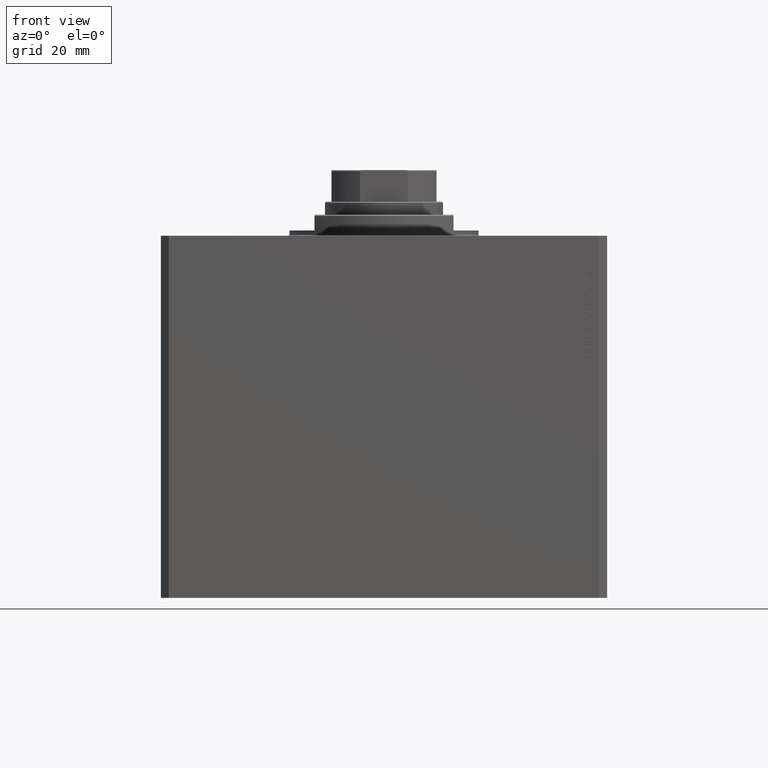
[diagram: clean part render]
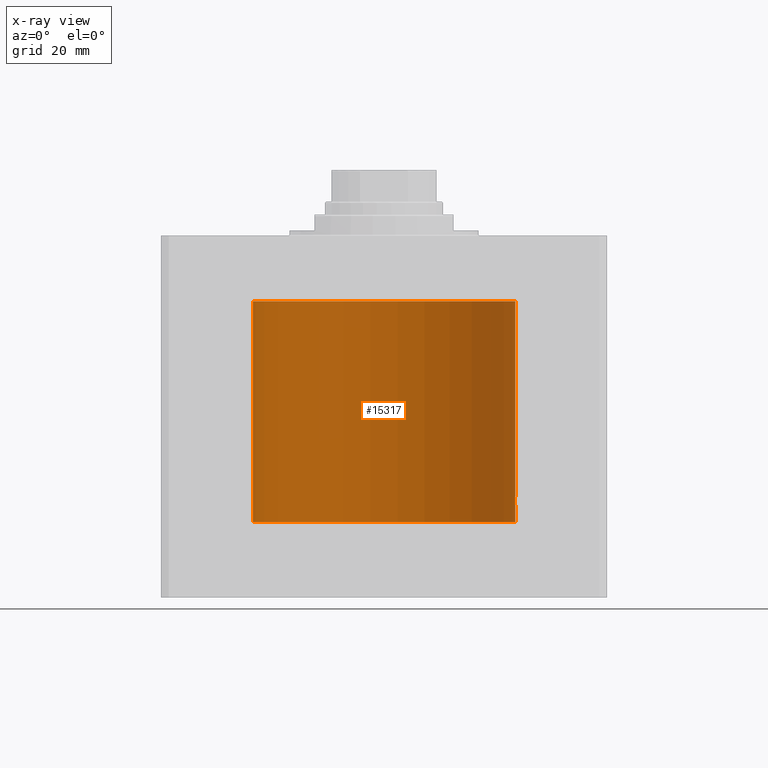
[diagram: x-ray — body ghosted, one internal face saturated and labeled with its STEP entity id]
A machine part, front view, then the same camera in x-ray: the body is ghosted and one INTERNAL B-rep face — a face not visible from any outside direction — is saturated and labeled: STEP entity #15317.
In plain terms, the highlighted cylindrical surface (partial cylindrical patch) has radius 50 mm, axis along (0, 0, 1).
Its self-contained STEP definition (entity closure, byte-faithful):
#154 = VECTOR ( 'NONE', #44885, 1000.000000000000000 ) ;
#468 = CARTESIAN_POINT ( 'NONE',  ( -49.95998213453558634, 2.000046279225707213, -37.12975027192857880 ) ) ;
#841 = CARTESIAN_POINT ( 'NONE',  ( 50.00000000000000000, 0.000000000000000000, -25.00000000000000711 ) ) ;
#854 = CARTESIAN_POINT ( 'NONE',  ( -50.00000000000000000, -9.003882097956092458E-15, -34.99999999999999289 ) ) ;
#898 = DIRECTION ( 'NONE',  ( 0.000000000000000000, 0.000000000000000000, 1.000000000000000000 ) ) ;
#1191 = LINE ( 'NONE', #44421, #154 ) ;
#2199 = CARTESIAN_POINT ( 'NONE',  ( 49.96952841668770162, 1.748193601366643479, -102.0058470866195535 ) ) ;
#2435 = CARTESIAN_POINT ( 'NONE',  ( 49.97475955401471026, 1.599209500590070165, -102.2290851407538668 ) ) ;
#2513 = EDGE_CURVE ( 'NONE', #8262, #12988, #1191, .T. ) ;
#3463 = LINE ( 'NONE', #3687, #14441 ) ;
#3552 = VERTEX_POINT ( 'NONE', #26683 ) ;
#3679 = CARTESIAN_POINT ( 'NONE',  ( 49.96398801900035380, 1.898003203340656198, -100.3559911791024746 ) ) ;
#3687 = CARTESIAN_POINT ( 'NONE',  ( 50.00000000000000000, 0.000000000000000000, -109.0999999999999943 ) ) ;
#3918 = CARTESIAN_POINT ( 'NONE',  ( 50.00000000000000000, -6.476745247090812175E-24, -99.00000000000001421 ) ) ;
#3929 = LINE ( 'NONE', #37349, #20547 ) ;
#4153 = CARTESIAN_POINT ( 'NONE',  ( 49.99005286890574951, 1.003169031662882960, -99.26488598342365322 ) ) ;
#4165 = DIRECTION ( 'NONE',  ( -0.000000000000000000, -0.000000000000000000, 1.000000000000000000 ) ) ;
#4262 = CARTESIAN_POINT ( 'NONE',  ( -49.97476780406313424, 1.598950834465297177, -35.77059039179120958 ) ) ;
#4266 = ORIENTED_EDGE ( 'NONE', *, *, #22914, .T. ) ;
#5608 = EDGE_CURVE ( 'NONE', #41278, #12988, #28737, .T. ) ;
#7179 = EDGE_CURVE ( 'NONE', #3552, #41148, #9769, .T. ) ;
#7261 = CARTESIAN_POINT ( 'NONE',  ( 49.96769480970100119, 1.797773714148178881, -100.1139000090266507 ) ) ;
#7686 = CARTESIAN_POINT ( 'NONE',  ( 50.00000000000000000, 0.000000000000000000, -109.0999999999999943 ) ) ;
#7846 = CARTESIAN_POINT ( 'NONE',  ( -49.96050770337905789, 1.987038794023258559, -37.26226128698008466 ) ) ;
#8072 = CARTESIAN_POINT ( 'NONE',  ( -50.00000000000000711, 0.1321588334531834663, -34.99999999999998579 ) ) ;
#8262 = VERTEX_POINT ( 'NONE', #37404 ) ;
#8312 = CARTESIAN_POINT ( 'NONE',  ( -49.95998770768563446, 1.999907061972440614, -36.73836523183381786 ) ) ;
#8989 = CARTESIAN_POINT ( 'NONE',  ( 50.00000000000000000, -6.476745247090812175E-24, -99.00000000000001421 ) ) ;
#9579 = CARTESIAN_POINT ( 'NONE',  ( 49.99598718814007015, 0.6449352407546056209, -102.8976971177264517 ) ) ;
#9769 = B_SPLINE_CURVE_WITH_KNOTS ( 'NONE', 3,
 ( #25895, #40712, #33290, #44521, #3679, #7261, #15368, #11791, #26358, #40469, #25438, #4153, #37112, #36412, #29244, #18263, #40014, #3918 ),
 .UNSPECIFIED., .F., .F.,
 ( 4, 2, 2, 2, 2, 2, 2, 2, 4 ),
 ( 0.003127478965430518024, 0.003518236230679781373, 0.003908993495929044722, 0.004299750761178307637, 0.004690508026427571420, 0.005081265291676834335, 0.005472022556926097250, 0.005862779822175361033, 0.006253537087424623948 ),
 .UNSPECIFIED. ) ;
#9791 = ORIENTED_EDGE ( 'NONE', *, *, #7179, .T. ) ;
#10093 = CIRCLE ( 'NONE', #10862, 50.00000000000000000 ) ;
#10862 = AXIS2_PLACEMENT_3D ( 'NONE', #33598, #898, #33840 ) ;
#11419 = CARTESIAN_POINT ( 'NONE',  ( -49.98523123236354593, 1.219998263164736807, -38.59015112589698759 ) ) ;
#11791 = CARTESIAN_POINT ( 'NONE',  ( 49.97475596784978080, 1.590287868744626465, -99.78017932967553349 ) ) ;
#11894 = CARTESIAN_POINT ( 'NONE',  ( -49.99004874905787688, 1.003375892571688910, -38.73499659467171341 ) ) ;
#12460 = CARTESIAN_POINT ( 'NONE',  ( 49.99007528730422933, 1.002097354324908984, -102.7357691082803939 ) ) ;
#12837 = DIRECTION ( 'NONE',  ( -0.000000000000000000, -0.000000000000000000, 1.000000000000000000 ) ) ;
#12988 = VERTEX_POINT ( 'NONE', #26185 ) ;
#13164 = CARTESIAN_POINT ( 'NONE',  ( 49.98524326844813004, 1.219541607305973274, -102.5905382022621950 ) ) ;
#14050 = EDGE_LOOP ( 'NONE', ( #18836, #23198, #27455, #24009, #9791, #4266, #20345, #32473, #25236 ) ) ;
#14213 = DIRECTION ( 'NONE',  ( -0.000000000000000000, -0.000000000000000000, 1.000000000000000000 ) ) ;
#14441 = VECTOR ( 'NONE', #14213, 1000.000000000000000 ) ;
#14529 = CARTESIAN_POINT ( 'NONE',  ( -49.96251288907240706, 1.935964606501246799, -37.51879205273049678 ) ) ;
#14759 = CARTESIAN_POINT ( 'NONE',  ( -50.00000000000000000, 6.123233989258355553E-15, -38.99999999999999289 ) ) ;
#15239 = CARTESIAN_POINT ( 'NONE',  ( -49.99947640732126786, 0.2621063239499291098, -35.01297064418641014 ) ) ;
#15317 = ADVANCED_FACE ( 'NONE', ( #20176 ), #31150, .F. ) ;
#15368 = CARTESIAN_POINT ( 'NONE',  ( 49.96993720661966876, 1.735115303979041013, -99.99682860132224960 ) ) ;
#15483 = CARTESIAN_POINT ( 'NONE',  ( -50.00000000000000000, -9.003882097956092458E-15, -34.99999999999999289 ) ) ;
#16630 = DIRECTION ( 'NONE',  ( 1.000000000000000000, 0.000000000000000000, 0.000000000000000000 ) ) ;
#16995 = CARTESIAN_POINT ( 'NONE',  ( 49.99947616946592177, 0.2621653831979099958, -102.9870235173230100 ) ) ;
#18263 = CARTESIAN_POINT ( 'NONE',  ( 49.99947219664575471, 0.2630509640965526530, -99.01307477770993160 ) ) ;
#18600 = CARTESIAN_POINT ( 'NONE',  ( -49.96216141728076821, 1.947404903100933504, -36.47512611661414184 ) ) ;
#18836 = ORIENTED_EDGE ( 'NONE', *, *, #2513, .F. ) ;
#19056 = CARTESIAN_POINT ( 'NONE',  ( -49.99598898362840771, 0.6447919409892277631, -35.10225615370830354 ) ) ;
#20013 = LINE ( 'NONE', #45568, #36513 ) ;
#20176 = FACE_OUTER_BOUND ( 'NONE', #14050, .T. ) ;
#20345 = ORIENTED_EDGE ( 'NONE', *, *, #28922, .T. ) ;
#20547 = VECTOR ( 'NONE', #4165, 1000.000000000000000 ) ;
#21140 = DIRECTION ( 'NONE',  ( 1.000000000000000000, 0.000000000000000000, 0.000000000000000000 ) ) ;
#21380 = EDGE_CURVE ( 'NONE', #23571, #29830, #20013, .T. ) ;
#22420 = CARTESIAN_POINT ( 'NONE',  ( -49.99007938266582585, 1.001891274688315958, -35.26411427938287346 ) ) ;
#22648 = CARTESIAN_POINT ( 'NONE',  ( -49.99227820941651146, 0.8870121366447422107, -35.20266925059756602 ) ) ;
#22885 = CARTESIAN_POINT ( 'NONE',  ( -49.99947195246410558, 0.2631107820817846776, -38.98691922436691470 ) ) ;
#22914 = EDGE_CURVE ( 'NONE', #41148, #26591, #3463, .T. ) ;
#23025 = EDGE_CURVE ( 'NONE', #41278, #36811, #3929, .T. ) ;
#23198 = ORIENTED_EDGE ( 'NONE', *, *, #29713, .F. ) ;
#23438 = CARTESIAN_POINT ( 'NONE',  ( 49.95998398718717226, 2.000000000000561773, -101.2609875752831385 ) ) ;
#23571 = VERTEX_POINT ( 'NONE', #7686 ) ;
#24009 = ORIENTED_EDGE ( 'NONE', *, *, #34138, .T. ) ;
#25236 = ORIENTED_EDGE ( 'NONE', *, *, #5608, .T. ) ;
#25438 = CARTESIAN_POINT ( 'NONE',  ( 49.98523696312182096, 1.219762141829697999, -99.40967013674318764 ) ) ;
#25767 = CARTESIAN_POINT ( 'NONE',  ( -49.96768660357033554, 1.798001154690308967, -37.88564223843271606 ) ) ;
#25895 = CARTESIAN_POINT ( 'NONE',  ( 49.95998398718716516, 2.000000000000563549, -101.0000000000000142 ) ) ;
#25994 = CARTESIAN_POINT ( 'NONE',  ( -49.99599814809604226, 0.6440968921210813436, -38.89798495722402549 ) ) ;
#26033 = AXIS2_PLACEMENT_3D ( 'NONE', #34316, #30482, #16630 ) ;
#26185 = CARTESIAN_POINT ( 'NONE',  ( -50.00000000000000000, 6.123233989258355553E-15, -38.99999999999999289 ) ) ;
#26358 = CARTESIAN_POINT ( 'NONE',  ( 49.97735290927441554, 1.507618726120014019, -99.67920111852205878 ) ) ;
#26466 = CARTESIAN_POINT ( 'NONE',  ( -49.98262832829516356, 1.321205413082626068, -38.50726475708437135 ) ) ;
#26591 = VERTEX_POINT ( 'NONE', #841 ) ;
#26683 = CARTESIAN_POINT ( 'NONE',  ( 49.95998398718716516, 2.000000000000563549, -101.0000000000000142 ) ) ;
#26796 = CARTESIAN_POINT ( 'NONE',  ( 49.95998398718716516, 2.000000000000563549, -101.0000000000000142 ) ) ;
#27455 = ORIENTED_EDGE ( 'NONE', *, *, #21380, .T. ) ;
#27502 = CARTESIAN_POINT ( 'NONE',  ( 50.00000000000000000, 4.564789087886820642E-17, -103.0000000000000284 ) ) ;
#28305 = DIRECTION ( 'NONE',  ( -0.000000000000000000, -0.000000000000000000, 1.000000000000000000 ) ) ;
#28737 = B_SPLINE_CURVE_WITH_KNOTS ( 'NONE', 3,
 ( #15483, #8072, #15239, #29805, #19056, #22648, #22420, #29352, #32691, #4262, #36989, #18600, #8312, #468, #7846, #14529, #44388, #25767, #36509, #44626, #30045, #26466, #11419, #11894, #37451, #25994, #43692, #22885, #43928, #14759 ),
 .UNSPECIFIED., .F., .F.,
 ( 4, 2, 2, 2, 2, 2, 2, 2, 2, 2, 2, 2, 2, 2, 4 ),
 ( 1.951448278188086515E-19, 0.0003908460679639682526, 0.0007816921359279362883, 0.001172538203891904324, 0.001563384271855872360, 0.002345076407783809082, 0.003126768543711746021, 0.003517614611675714056, 0.003908460679639682092, 0.004299306747603650128, 0.004690152815567618164, 0.005080998883531586199, 0.005471844951495554235, 0.005862691019459522271, 0.006253537087423490307 ),
 .UNSPECIFIED. ) ;
#28922 = EDGE_CURVE ( 'NONE', #26591, #36811, #10093, .T. ) ;
#29244 = CARTESIAN_POINT ( 'NONE',  ( 49.99746746122490038, 0.5192910711913449884, -99.06417861566059457 ) ) ;
#29352 = CARTESIAN_POINT ( 'NONE',  ( -49.98524905102831184, 1.219303128102697586, -35.40928153240807319 ) ) ;
#29713 = EDGE_CURVE ( 'NONE', #23571, #8262, #46644, .T. ) ;
#29805 = CARTESIAN_POINT ( 'NONE',  ( -49.99748258676788026, 0.5177602892975206039, -35.06378986968200451 ) ) ;
#29830 = VERTEX_POINT ( 'NONE', #42685 ) ;
#30045 = CARTESIAN_POINT ( 'NONE',  ( -49.97734518528593384, 1.507874855161120076, -38.32050907330479106 ) ) ;
#30482 = DIRECTION ( 'NONE',  ( 0.000000000000000000, 0.000000000000000000, 1.000000000000000000 ) ) ;
#31074 = CARTESIAN_POINT ( 'NONE',  ( 49.99227494580978259, 0.8871990329080465809, -102.7972405769406521 ) ) ;
#31150 = CYLINDRICAL_SURFACE ( 'NONE', #40822, 50.00000000000000000 ) ;
#31234 = CARTESIAN_POINT ( 'NONE',  ( -50.00000000000000000, 6.123233995736766085E-15, -25.00000000000000711 ) ) ;
#32110 = CARTESIAN_POINT ( 'NONE',  ( 0.000000000000000000, 0.000000000000000000, -109.0999999999999943 ) ) ;
#32473 = ORIENTED_EDGE ( 'NONE', *, *, #23025, .F. ) ;
#32691 = CARTESIAN_POINT ( 'NONE',  ( -49.98259925701036366, 1.322227939264704055, -35.49376754264949341 ) ) ;
#33290 = CARTESIAN_POINT ( 'NONE',  ( 49.96051123778291725, 1.986950357331387140, -100.7370861026879965 ) ) ;
#33598 = CARTESIAN_POINT ( 'NONE',  ( 0.000000000000000000, 0.000000000000000000, -25.00000000000000711 ) ) ;
#33840 = DIRECTION ( 'NONE',  ( 1.000000000000000000, 0.000000000000000000, 0.000000000000000000 ) ) ;
#34138 = EDGE_CURVE ( 'NONE', #29830, #3552, #44707, .T. ) ;
#34316 = CARTESIAN_POINT ( 'NONE',  ( 0.000000000000000000, 0.000000000000000000, -109.0999999999999943 ) ) ;
#36412 = CARTESIAN_POINT ( 'NONE',  ( 49.99599990398858296, 0.6439560014968555013, -99.10196939152022821 ) ) ;
#36509 = CARTESIAN_POINT ( 'NONE',  ( -49.96992887184637055, 1.735355026673580214, -38.00276062309308855 ) ) ;
#36513 = VECTOR ( 'NONE', #12837, 1000.000000000000000 ) ;
#36811 = VERTEX_POINT ( 'NONE', #31234 ) ;
#36989 = CARTESIAN_POINT ( 'NONE',  ( -49.96953708402610062, 1.747948211813102892, -35.99374183287712725 ) ) ;
#37112 = CARTESIAN_POINT ( 'NONE',  ( 49.99229103891970993, 0.8862970221311291530, -99.20231340018575850 ) ) ;
#37349 = CARTESIAN_POINT ( 'NONE',  ( -50.00000000000000000, 6.123233995736766085E-15, -109.0999999999999943 ) ) ;
#37404 = CARTESIAN_POINT ( 'NONE',  ( -50.00000000000000000, 6.123233995736766085E-15, -109.0999999999999943 ) ) ;
#37451 = CARTESIAN_POINT ( 'NONE',  ( -49.99228773711749341, 0.8864865707480856782, -38.79759541170199100 ) ) ;
#40014 = CARTESIAN_POINT ( 'NONE',  ( 50.00000000000000000, 0.1305077942112368161, -98.99999999999997158 ) ) ;
#40469 = CARTESIAN_POINT ( 'NONE',  ( 49.98263500888552358, 1.320952538904951457, -99.49251590435541459 ) ) ;
#40712 = CARTESIAN_POINT ( 'NONE',  ( 49.95998398718716516, 2.000000000000564881, -100.8695654969272084 ) ) ;
#40822 = AXIS2_PLACEMENT_3D ( 'NONE', #32110, #28305, #21140 ) ;
#41148 = VERTEX_POINT ( 'NONE', #8989 ) ;
#41278 = VERTEX_POINT ( 'NONE', #854 ) ;
#41612 = CARTESIAN_POINT ( 'NONE',  ( 49.98259270595343651, 1.322475809934057889, -102.5060172839779113 ) ) ;
#42685 = CARTESIAN_POINT ( 'NONE',  ( 50.00000000000000000, 4.564789087886820642E-17, -103.0000000000000284 ) ) ;
#43692 = CARTESIAN_POINT ( 'NONE',  ( -49.99746633848589283, 0.5194059499681270564, -38.93579253716512767 ) ) ;
#43928 = CARTESIAN_POINT ( 'NONE',  ( -50.00000000000001421, 0.1305374531515847703, -38.99999999999999289 ) ) ;
#44388 = CARTESIAN_POINT ( 'NONE',  ( -49.96398106625520086, 1.898185627324846303, -37.64347622409935212 ) ) ;
#44421 = CARTESIAN_POINT ( 'NONE',  ( -50.00000000000000000, 6.123233995736766085E-15, -109.0999999999999943 ) ) ;
#44521 = CARTESIAN_POINT ( 'NONE',  ( 49.96251892914505532, 1.935809163618958051, -100.4806366185916318 ) ) ;
#44626 = CARTESIAN_POINT ( 'NONE',  ( -49.97474787754178749, 1.590541763713786860, -38.21949285922860184 ) ) ;
#44707 = B_SPLINE_CURVE_WITH_KNOTS ( 'NONE', 3,
 ( #27502, #45189, #16995, #45910, #9579, #31074, #12460, #13164, #41612, #2435, #2199, #45422, #23438, #26796 ),
 .UNSPECIFIED., .F., .F.,
 ( 4, 2, 2, 2, 2, 2, 4 ),
 ( 4.436058941706983627E-20, 0.0003909348706788146445, 0.0007818697413576291807, 0.001172804612036443825, 0.001563739482715258361, 0.002345609224072888084, 0.003127478965430518024 ),
 .UNSPECIFIED. ) ;
#44885 = DIRECTION ( 'NONE',  ( -0.000000000000000000, -0.000000000000000000, 1.000000000000000000 ) ) ;
#45189 = CARTESIAN_POINT ( 'NONE',  ( 50.00000000000000711, 0.1321888607815029093, -103.0000000000000568 ) ) ;
#45422 = CARTESIAN_POINT ( 'NONE',  ( 49.96215500645249818, 1.947567242801464760, -101.5243005476701228 ) ) ;
#45568 = CARTESIAN_POINT ( 'NONE',  ( 50.00000000000000000, 0.000000000000000000, -109.0999999999999943 ) ) ;
#45910 = CARTESIAN_POINT ( 'NONE',  ( 49.99748146545036320, 0.5178754880116728243, -102.9361813255630125 ) ) ;
#46644 = CIRCLE ( 'NONE', #26033, 50.00000000000000000 ) ;